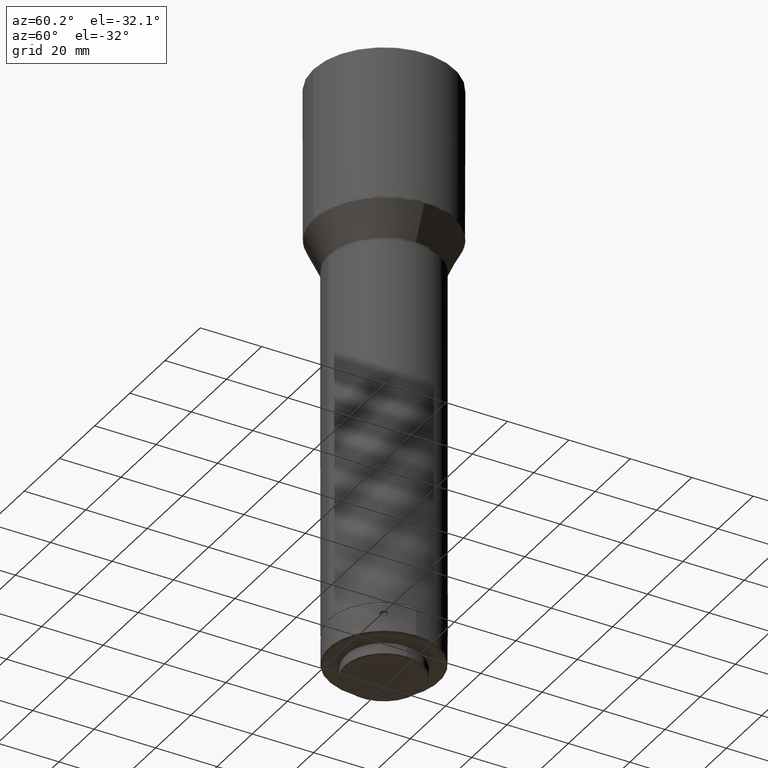
[diagram: clean part render]
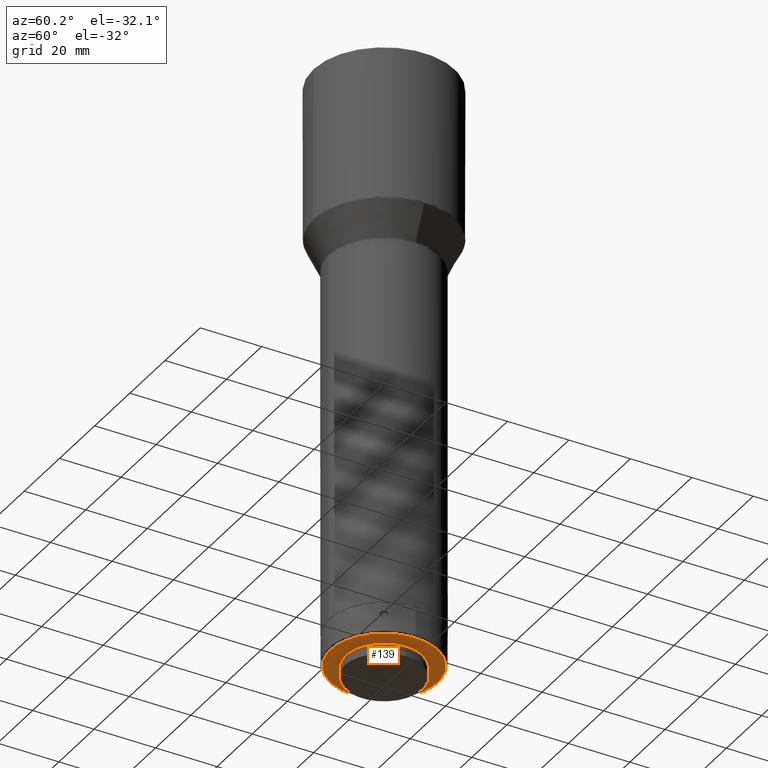
[diagram: same view with one face highlighted and labeled with its STEP entity id]
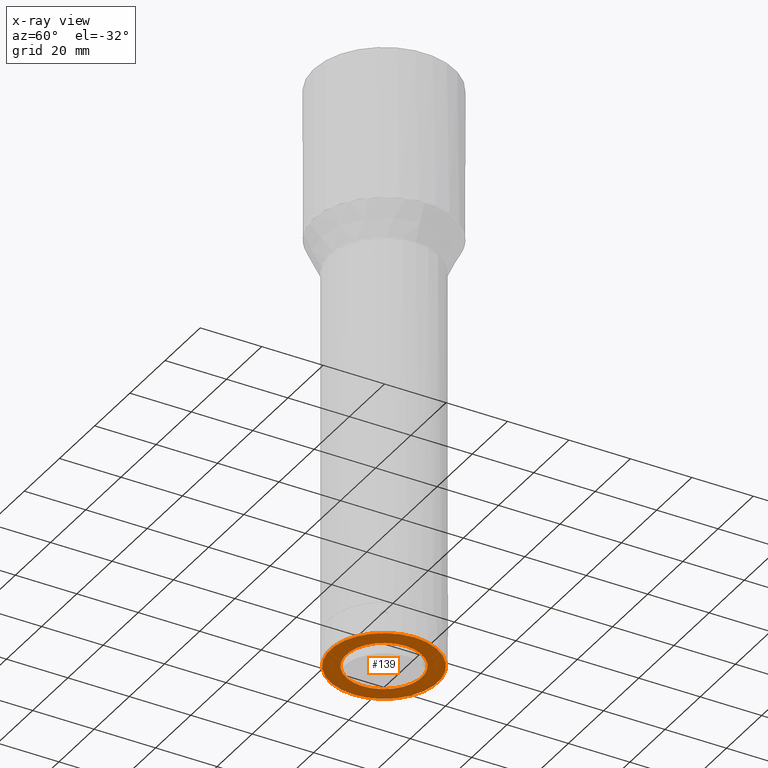
[diagram: x-ray of the same camera — body ghosted, the highlighted face saturated]
A machine part, auxiliary view. The second image highlights one B-rep face of the part: STEP entity #139.
The next image is the same camera in x-ray: the body ghosted, the highlighted face saturated — about 0% of this face is hidden behind the body in this view.
In plain terms, the highlighted planar face has unit normal (-0, 0, 1).
Its self-contained STEP definition (entity closure, byte-faithful):
#10 = DIRECTION ( 'NONE',  ( 1.000000000000000000, 0.000000000000000000, 0.000000000000000000 ) ) ;
#55 = CARTESIAN_POINT ( 'NONE',  ( -7.702630993699205639E-31, -1.295151956456359438E-32, -802.0835279999998875 ) ) ;
#85 = AXIS2_PLACEMENT_3D ( 'NONE', #55, #242, #490 ) ;
#134 = FACE_OUTER_BOUND ( 'NONE', #286, .T. ) ;
#139 = ADVANCED_FACE ( 'NONE', ( #679, #134 ), #612, .F. ) ;
#152 = EDGE_CURVE ( 'NONE', #586, #586, #709, .T. ) ;
#161 = CARTESIAN_POINT ( 'NONE',  ( 0.000000000000000000, -1.203706215242022408E-32, -802.0835279999998875 ) ) ;
#165 = AXIS2_PLACEMENT_3D ( 'NONE', #553, #672, #10 ) ;
#242 = DIRECTION ( 'NONE',  ( -0.000000000000000000, -0.000000000000000000, -1.000000000000000000 ) ) ;
#265 = ORIENTED_EDGE ( 'NONE', *, *, #152, .F. ) ;
#286 = EDGE_LOOP ( 'NONE', ( #563 ) ) ;
#337 = DIRECTION ( 'NONE',  ( 0.000000000000000000, -0.000000000000000000, 1.000000000000000000 ) ) ;
#400 = VERTEX_POINT ( 'NONE', #544 ) ;
#435 = EDGE_LOOP ( 'NONE', ( #265 ) ) ;
#484 = CIRCLE ( 'NONE', #630, 17.49999999999997513 ) ;
#490 = DIRECTION ( 'NONE',  ( 1.000000000000000000, 0.000000000000000000, 0.000000000000000000 ) ) ;
#544 = CARTESIAN_POINT ( 'NONE',  ( 17.49999999999997513, -1.203706215242022408E-32, -802.0835279999998875 ) ) ;
#553 = CARTESIAN_POINT ( 'NONE',  ( 4.267419750902868045E-17, 12.29999999999999893, -802.0835279999998875 ) ) ;
#563 = ORIENTED_EDGE ( 'NONE', *, *, #694, .F. ) ;
#586 = VERTEX_POINT ( 'NONE', #632 ) ;
#612 = PLANE ( 'NONE',  #165 ) ;
#630 = AXIS2_PLACEMENT_3D ( 'NONE', #161, #337, #778 ) ;
#632 = CARTESIAN_POINT ( 'NONE',  ( 12.29999999999999893, -1.295151956456359438E-32, -802.0835279999998875 ) ) ;
#672 = DIRECTION ( 'NONE',  ( -0.000000000000000000, 0.000000000000000000, 1.000000000000000000 ) ) ;
#679 = FACE_BOUND ( 'NONE', #435, .T. ) ;
#694 = EDGE_CURVE ( 'NONE', #400, #400, #484, .T. ) ;
#709 = CIRCLE ( 'NONE', #85, 12.29999999999999893 ) ;
#778 = DIRECTION ( 'NONE',  ( 1.000000000000000000, 0.000000000000000000, 0.000000000000000000 ) ) ;